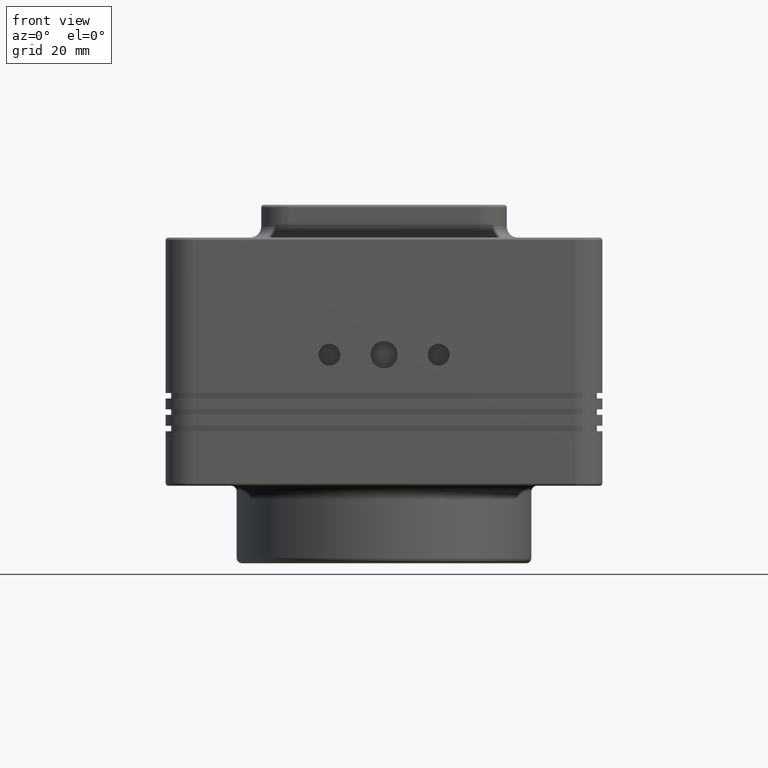
[diagram: clean part render]
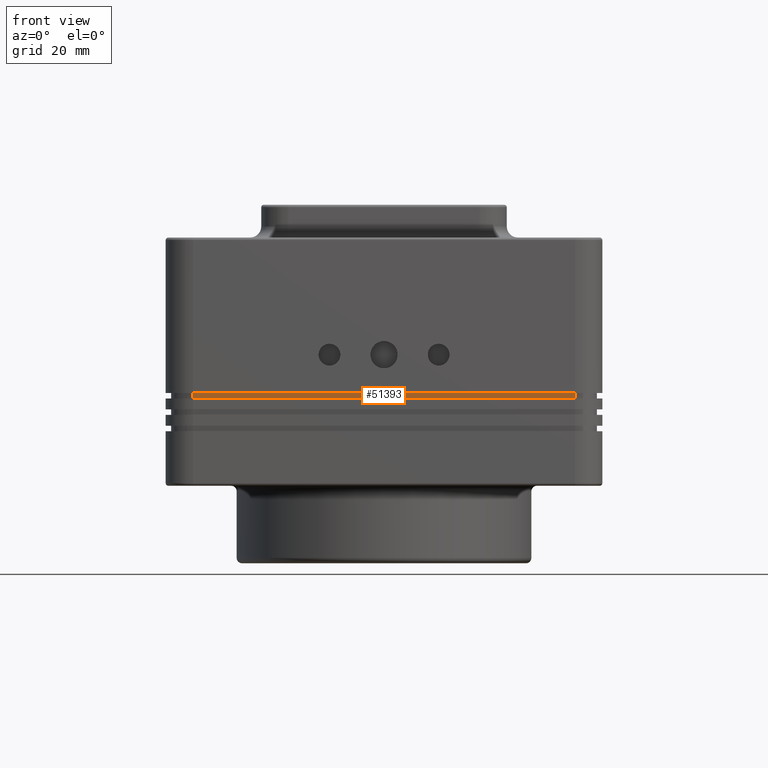
[diagram: same view with one face highlighted and labeled with its STEP entity id]
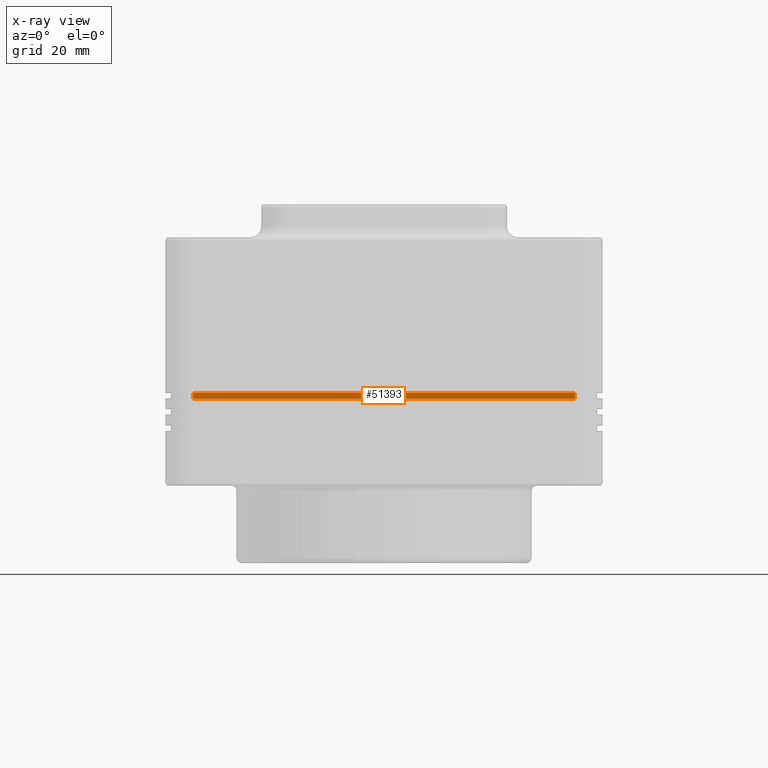
[diagram: x-ray of the same camera — body ghosted, the highlighted face saturated]
A machine part, front view. The second image highlights one B-rep face of the part: STEP entity #51393.
The next image is the same camera in x-ray: the body ghosted, the highlighted face saturated — about 0% of this face is hidden behind the body in this view.
In plain terms, the highlighted planar face has unit normal (0, -1, 0).
Its self-contained STEP definition (entity closure, byte-faithful):
#156 = LINE ( 'NONE', #9309, #40793 ) ;
#2010 = DIRECTION ( 'NONE',  ( 0.000000000000000000, -1.000000000000000000, 0.000000000000000000 ) ) ;
#2466 = CARTESIAN_POINT ( 'NONE',  ( 35.00000000000000000, -39.00000000000000000, 1.199999999999999956 ) ) ;
#8250 = EDGE_CURVE ( 'NONE', #19197, #18793, #9963, .T. ) ;
#9309 = CARTESIAN_POINT ( 'NONE',  ( 35.00000000000000000, -39.00000000000000000, 0.2000000000000000111 ) ) ;
#9963 = LINE ( 'NONE', #2466, #24099 ) ;
#10662 = VERTEX_POINT ( 'NONE', #54298 ) ;
#10698 = VERTEX_POINT ( 'NONE', #50708 ) ;
#11046 = VECTOR ( 'NONE', #46762, 1000.000000000000000 ) ;
#12227 = CARTESIAN_POINT ( 'NONE',  ( -35.00000000000000000, -39.00000000000000000, 1.199999999999999956 ) ) ;
#13229 = VECTOR ( 'NONE', #51959, 1000.000000000000000 ) ;
#18313 = CARTESIAN_POINT ( 'NONE',  ( 35.00000000000000000, -39.00000000000000000, 1.199999999999999956 ) ) ;
#18793 = VERTEX_POINT ( 'NONE', #12227 ) ;
#18876 = FACE_OUTER_BOUND ( 'NONE', #45181, .T. ) ;
#19144 = CARTESIAN_POINT ( 'NONE',  ( 35.00000000000000000, -39.00000000000000000, 1.199999999999999956 ) ) ;
#19197 = VERTEX_POINT ( 'NONE', #38113 ) ;
#20893 = DIRECTION ( 'NONE',  ( -1.000000000000000000, 0.000000000000000000, 0.000000000000000000 ) ) ;
#24099 = VECTOR ( 'NONE', #49373, 1000.000000000000000 ) ;
#28922 = EDGE_CURVE ( 'NONE', #19197, #10662, #42886, .T. ) ;
#31223 = EDGE_CURVE ( 'NONE', #10662, #10698, #156, .T. ) ;
#32969 = EDGE_CURVE ( 'NONE', #18793, #10698, #36066, .T. ) ;
#33270 = CARTESIAN_POINT ( 'NONE',  ( -35.00000000000000000, -39.00000000000000000, 1.199999999999999956 ) ) ;
#36066 = LINE ( 'NONE', #33270, #11046 ) ;
#36540 = AXIS2_PLACEMENT_3D ( 'NONE', #19144, #2010, #52793 ) ;
#36989 = ORIENTED_EDGE ( 'NONE', *, *, #32969, .T. ) ;
#38113 = CARTESIAN_POINT ( 'NONE',  ( 35.00000000000000000, -39.00000000000000000, 1.199999999999999956 ) ) ;
#40389 = PLANE ( 'NONE',  #36540 ) ;
#40793 = VECTOR ( 'NONE', #20893, 1000.000000000000000 ) ;
#42765 = ORIENTED_EDGE ( 'NONE', *, *, #28922, .F. ) ;
#42886 = LINE ( 'NONE', #18313, #13229 ) ;
#45181 = EDGE_LOOP ( 'NONE', ( #47032, #42765, #49809, #36989 ) ) ;
#46762 = DIRECTION ( 'NONE',  ( 0.000000000000000000, 0.000000000000000000, -1.000000000000000000 ) ) ;
#47032 = ORIENTED_EDGE ( 'NONE', *, *, #31223, .F. ) ;
#49373 = DIRECTION ( 'NONE',  ( -1.000000000000000000, 0.000000000000000000, 0.000000000000000000 ) ) ;
#49809 = ORIENTED_EDGE ( 'NONE', *, *, #8250, .T. ) ;
#50708 = CARTESIAN_POINT ( 'NONE',  ( -35.00000000000000000, -39.00000000000000000, 0.2000000000000000111 ) ) ;
#51393 = ADVANCED_FACE ( 'NONE', ( #18876 ), #40389, .T. ) ;
#51959 = DIRECTION ( 'NONE',  ( 0.000000000000000000, 0.000000000000000000, -1.000000000000000000 ) ) ;
#52793 = DIRECTION ( 'NONE',  ( 0.000000000000000000, 0.000000000000000000, -1.000000000000000000 ) ) ;
#54298 = CARTESIAN_POINT ( 'NONE',  ( 35.00000000000000000, -39.00000000000000000, 0.2000000000000000111 ) ) ;